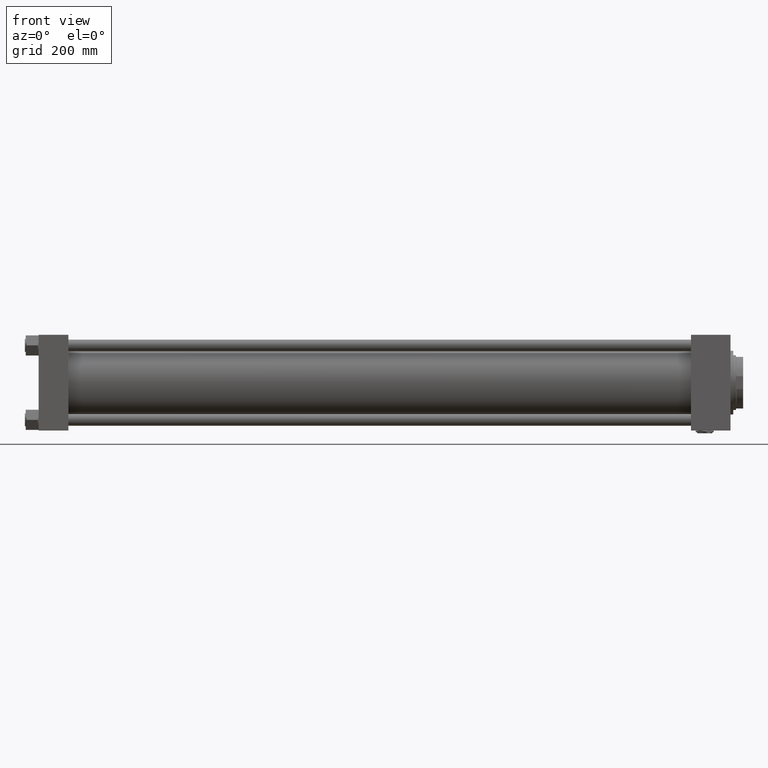
[diagram: clean part render]
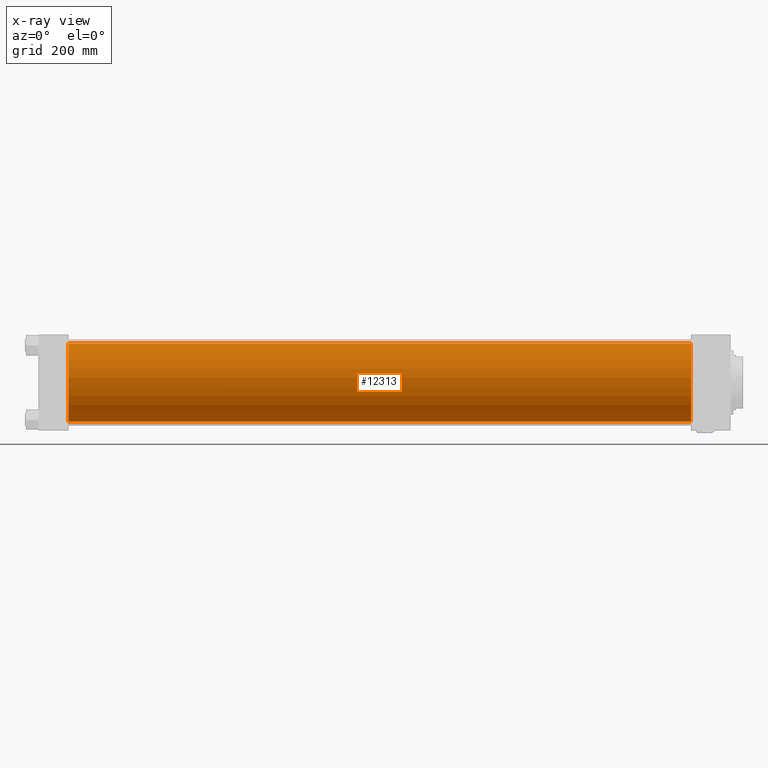
[diagram: x-ray — body ghosted, one internal face saturated and labeled with its STEP entity id]
A machine part, front view, then the same camera in x-ray: the body is ghosted and one INTERNAL B-rep face — a face not visible from any outside direction — is saturated and labeled: STEP entity #12313.
In plain terms, the highlighted cylindrical surface (partial cylindrical patch) has radius 100 mm, axis along (-1, -0, -0).
Its self-contained STEP definition (entity closure, byte-faithful):
#39 = FACE_OUTER_BOUND ( 'NONE', #23875, .T. ) ;
#97 = CARTESIAN_POINT ( 'NONE',  ( 1668.000000000000227, -2.602085213965210642E-15, 0.000000000000000000 ) ) ;
#4200 = CARTESIAN_POINT ( 'NONE',  ( 76.00000000000000000, 9.644382777508321529E-15, -100.0000000000000000 ) ) ;
#4473 = EDGE_CURVE ( 'NONE', #30153, #33129, #29816, .T. ) ;
#5659 = CARTESIAN_POINT ( 'NONE',  ( 76.00000000000000000, -2.602085213965210642E-15, 0.000000000000000000 ) ) ;
#6396 = CIRCLE ( 'NONE', #42006, 100.0000000000000000 ) ;
#7132 = LINE ( 'NONE', #35783, #15799 ) ;
#7420 = AXIS2_PLACEMENT_3D ( 'NONE', #16476, #32402, #44609 ) ;
#8586 = DIRECTION ( 'NONE',  ( 0.000000000000000000, 0.000000000000000000, -1.000000000000000000 ) ) ;
#9492 = AXIS2_PLACEMENT_3D ( 'NONE', #5659, #49470, #42270 ) ;
#12313 = ADVANCED_FACE ( 'NONE', ( #39 ), #16223, .F. ) ;
#13935 = ORIENTED_EDGE ( 'NONE', *, *, #39742, .T. ) ;
#15799 = VECTOR ( 'NONE', #23298, 1000.000000000000000 ) ;
#16223 = CYLINDRICAL_SURFACE ( 'NONE', #7420, 100.0000000000000000 ) ;
#16476 = CARTESIAN_POINT ( 'NONE',  ( 1668.000000000000227, -2.602085213965210642E-15, 0.000000000000000000 ) ) ;
#19269 = CARTESIAN_POINT ( 'NONE',  ( 1668.000000000000227, 9.644382777508321529E-15, -100.0000000000000000 ) ) ;
#19487 = CARTESIAN_POINT ( 'NONE',  ( 76.00000000000000000, -2.602085213965210642E-15, 100.0000000000000000 ) ) ;
#23298 = DIRECTION ( 'NONE',  ( -1.000000000000000000, -0.000000000000000000, -0.000000000000000000 ) ) ;
#23875 = EDGE_LOOP ( 'NONE', ( #13935, #31644, #37151, #46095 ) ) ;
#24511 = CARTESIAN_POINT ( 'NONE',  ( 1668.000000000000227, 9.644382777508321529E-15, -100.0000000000000000 ) ) ;
#26165 = EDGE_CURVE ( 'NONE', #27753, #33129, #27708, .T. ) ;
#27708 = LINE ( 'NONE', #24511, #31496 ) ;
#27753 = VERTEX_POINT ( 'NONE', #19269 ) ;
#28233 = DIRECTION ( 'NONE',  ( -1.000000000000000000, -0.000000000000000000, -0.000000000000000000 ) ) ;
#29816 = CIRCLE ( 'NONE', #9492, 100.0000000000000000 ) ;
#30153 = VERTEX_POINT ( 'NONE', #19487 ) ;
#31266 = CARTESIAN_POINT ( 'NONE',  ( 1668.000000000000227, -2.602085213965210642E-15, 100.0000000000000000 ) ) ;
#31496 = VECTOR ( 'NONE', #28233, 1000.000000000000000 ) ;
#31644 = ORIENTED_EDGE ( 'NONE', *, *, #26165, .T. ) ;
#32402 = DIRECTION ( 'NONE',  ( -1.000000000000000000, -0.000000000000000000, -0.000000000000000000 ) ) ;
#33129 = VERTEX_POINT ( 'NONE', #4200 ) ;
#35783 = CARTESIAN_POINT ( 'NONE',  ( 1668.000000000000227, -2.602085213965210642E-15, 100.0000000000000000 ) ) ;
#36432 = DIRECTION ( 'NONE',  ( 1.000000000000000000, 0.000000000000000000, 0.000000000000000000 ) ) ;
#37151 = ORIENTED_EDGE ( 'NONE', *, *, #4473, .F. ) ;
#39742 = EDGE_CURVE ( 'NONE', #42468, #27753, #6396, .T. ) ;
#42006 = AXIS2_PLACEMENT_3D ( 'NONE', #97, #36432, #8586 ) ;
#42270 = DIRECTION ( 'NONE',  ( 0.000000000000000000, 0.000000000000000000, -1.000000000000000000 ) ) ;
#42468 = VERTEX_POINT ( 'NONE', #31266 ) ;
#42625 = EDGE_CURVE ( 'NONE', #42468, #30153, #7132, .T. ) ;
#44609 = DIRECTION ( 'NONE',  ( 0.000000000000000000, 0.000000000000000000, 1.000000000000000000 ) ) ;
#46095 = ORIENTED_EDGE ( 'NONE', *, *, #42625, .F. ) ;
#49470 = DIRECTION ( 'NONE',  ( 1.000000000000000000, 0.000000000000000000, 0.000000000000000000 ) ) ;